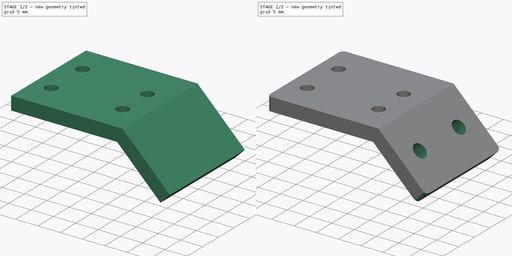
[diagram: build sequence overview — one tinted view per stage of 2, left to right]
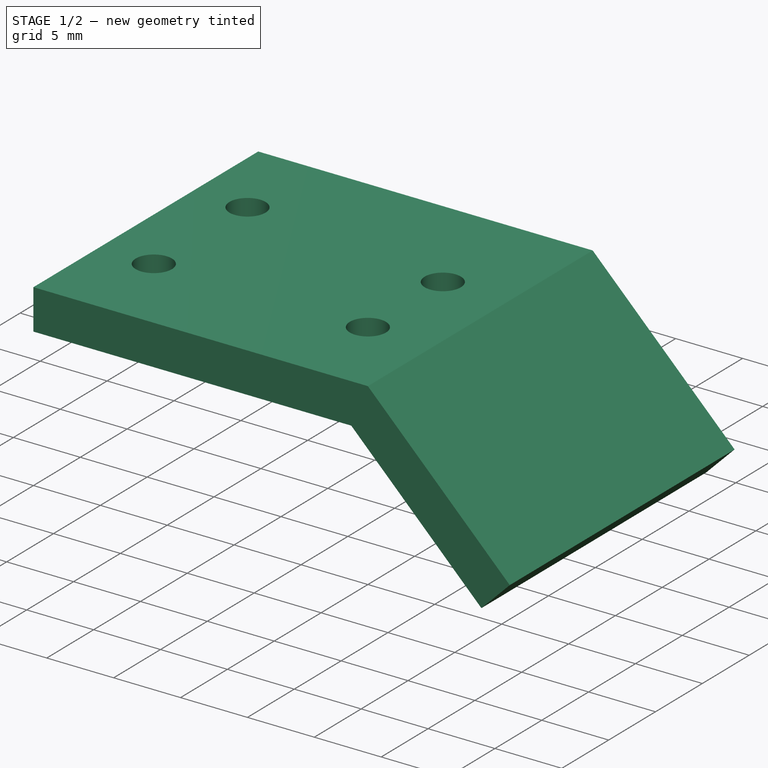
[diagram: stage 1 of 2 — iso view after this stage's code; geometry added in this stage tinted green]
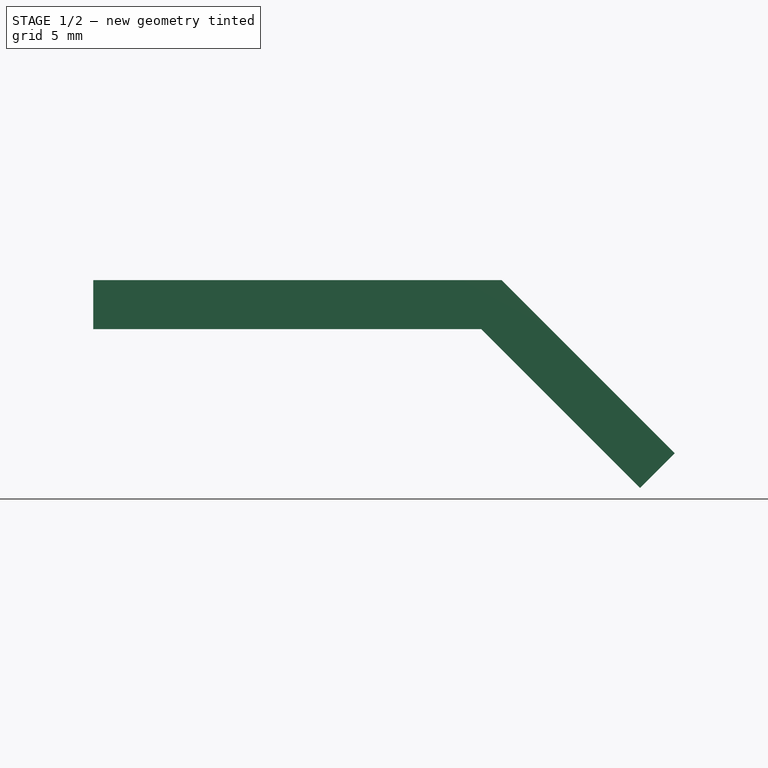
[diagram: stage 1 of 2 — front view after this stage's code; geometry added in this stage tinted green]
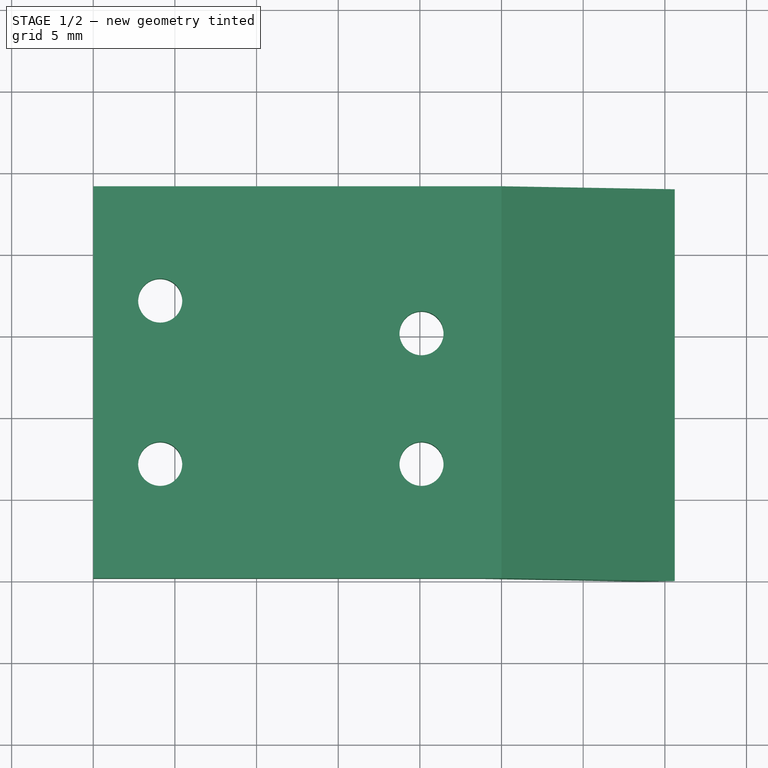
[diagram: stage 1 of 2 — top view after this stage's code; geometry added in this stage tinted green]
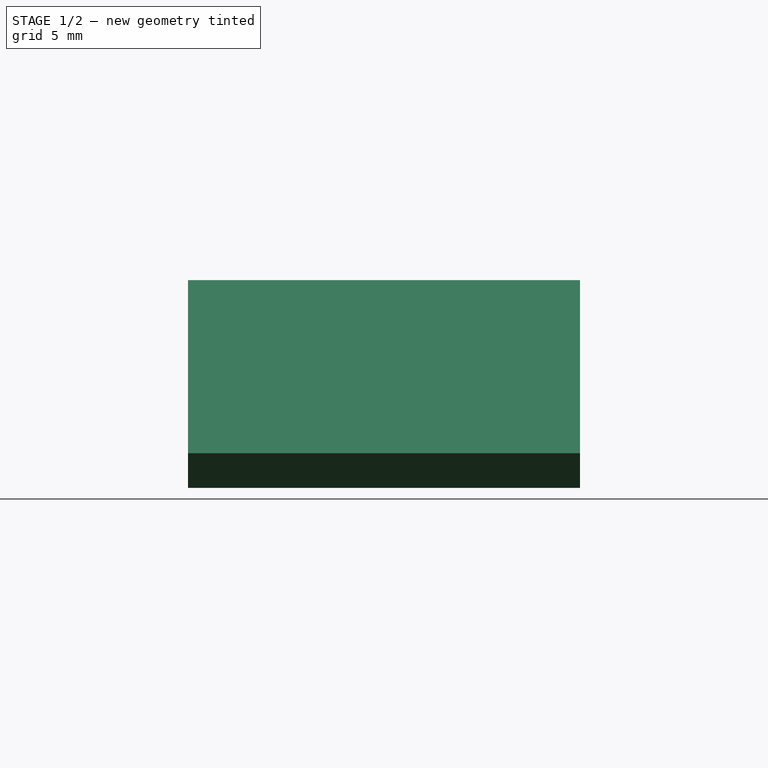
[diagram: stage 1 of 2 — right view after this stage's code; geometry added in this stage tinted green]
FCSTD DOCUMENT  (FreeCAD 0.19R24276 (Git))
Label: Nikhrom_plate_holder
License: All rights reserved
LicenseURL: http://en.wikipedia.org/wiki/All_rights_reserved
objects: Sketcher::SketchObject×3, PartDesign::Pad×2, PartDesign::Pocket×1, PartDesign::Fillet×1, PartDesign::Body×1
note: 12 computed .brp shape members not serialized (recipe doc carries the construction recipe); baked Part::Feature solids carry a one-line shape summary decoded from their .brp

FEATURE [Sketcher::SketchObject] Sketch
  FullyConstrained = true
  MapMode = 5
  Support = -> [XY_Plane]
  sketch-geometry (8):
    g0: LineSegment StartX=0 StartY=0 StartZ=0 EndX=25 EndY=0 EndZ=0
    g1: LineSegment StartX=25 StartY=0 StartZ=0 EndX=25 EndY=24 EndZ=0
    g2: LineSegment StartX=25 StartY=24 StartZ=0 EndX=0 EndY=24 EndZ=0
    g3: LineSegment StartX=0 StartY=24 StartZ=0 EndX=0 EndY=0 EndZ=0
    g4: Circle CenterX=4.1 CenterY=17 CenterZ=0 NormalX=0 NormalY=0 NormalZ=1 AngleXU=0 Radius=1.35
    g5: Circle CenterX=20.1 CenterY=15 CenterZ=0 NormalX=0 NormalY=0 NormalZ=1 AngleXU=0 Radius=1.35
    g6: Circle CenterX=4.1 CenterY=7 CenterZ=0 NormalX=0 NormalY=0 NormalZ=1 AngleXU=0 Radius=1.35
    g7: Circle CenterX=20.1 CenterY=7 CenterZ=0 NormalX=0 NormalY=0 NormalZ=1 AngleXU=0 Radius=1.35
  constraints (23):
    c: Coincident(g0,g1)
    c: Coincident(g1,g2)
    c: Coincident(g2,g3)
    c: Coincident(g3,g0)
    c: Horizontal(g0)
    c: Horizontal(g2)
    c: Vertical(g1)
    c: Vertical(g3)
    c: Coincident(g0,g-1)
    c: DistanceY(g3,g3) = 24
    c: DistanceX(g0,g0) = 25
    c: Diameter(g6) = 2.7
    c: Equal(g6,g4)
    c: Equal(g6,g7)
    c: Equal(g6,g5)
    c: Vertical(g4,g6)
    c: DistanceY(g-1,g6) = 7
    c: DistanceY(g6,g4) = 10
    c: Horizontal(g6,g7)
    c: Vertical(g5,g7)
    c: DistanceY(g7,g5) = 8
    c: DistanceX(g6,g7) = 16
    c: DistanceX(g-1,g6) = 4.1
FEATURE [PartDesign::Pad] Pad
  Direction = (1,1,1)
  Length = 3
  Length2 = 100
  Profile = -> Sketch
  Type = 0
FEATURE [Sketcher::SketchObject] Sketch001
  FullyConstrained = true
  MapMode = 5
  Placement = pos=(0,24,0) rot=(0,0.707107,0.707107;3.14159rad)
  Support = -> [Pad]
  sketch-geometry (10):
    g0: LineSegment StartX=0 StartY=0 StartZ=0 EndX=10.6066 EndY=10.6066 EndZ=0
    g1: LineSegment StartX=10.6066 StartY=10.6066 StartZ=0 EndX=8.48528 EndY=12.7279 EndZ=0
    g2: LineSegment StartX=8.48528 StartY=12.7279 StartZ=0 EndX=-2.12132 EndY=2.12132 EndZ=0
    g3: LineSegment StartX=0 StartY=0 StartZ=0 EndX=-2.12132 EndY=2.12132 EndZ=0
    g4: LineSegment StartX=-25 StartY=3 StartZ=0 EndX=-35.6066 EndY=-7.6066 EndZ=0
    g5: LineSegment StartX=0 StartY=0 StartZ=0 EndX=-25 EndY=0 EndZ=0
    g6: LineSegment StartX=-25 StartY=0 StartZ=0 EndX=-25 EndY=3 EndZ=0
    g7: LineSegment StartX=-35.6066 StartY=-7.6066 StartZ=0 EndX=-33.4853 EndY=-9.72792 EndZ=0
    g8: LineSegment StartX=-33.4853 StartY=-9.72792 StartZ=0 EndX=-22.8787 EndY=0.87868 EndZ=0
    g9: LineSegment StartX=-22.8787 StartY=0.87868 StartZ=0 EndX=-25 EndY=3 EndZ=0
  constraints (28):
    c: Coincident(g0,g-1)
    c: Angle(g-1,g0) = 0.785398
    c: Coincident(g1,g0)
    c: Perpendicular(g0,g1)
    c: Coincident(g2,g1)
    c: Coincident(g3,g0)
    c: Coincident(g3,g2)
    c: Perpendicular(g0,g3)
    c: Parallel(g2,g0)
    c: Distance(g1) = 3
    c: Distance(g0) = 15
    c: Coincident(g5,g0)
    c: Horizontal(g5)
    c: Coincident(g6,g5)
    c: Coincident(g6,g4)
    c: Vertical(g6)
    c: DistanceX(g5,g5) = 25
    c: DistanceY(g6,g6) = 3
    c: Parallel(g4,g2)
    c: Equal(g2,g4)
    c: Coincident(g7,g4)
    c: Coincident(g8,g7)
    c: Coincident(g9,g4)
    c: Perpendicular(g4,g7)
    c: Parallel(g8,g4)
    c: Parallel(g9,g7)
    c: Distance(g7) = 3
    c: Coincident(g8,g9)
FEATURE [PartDesign::Pad] Pad001
  BaseFeature = -> Pad
  Direction = (1,1,1)
  Length = 24
  Length2 = 100
  Profile = -> Sketch001
  Reversed = true
  Type = 0
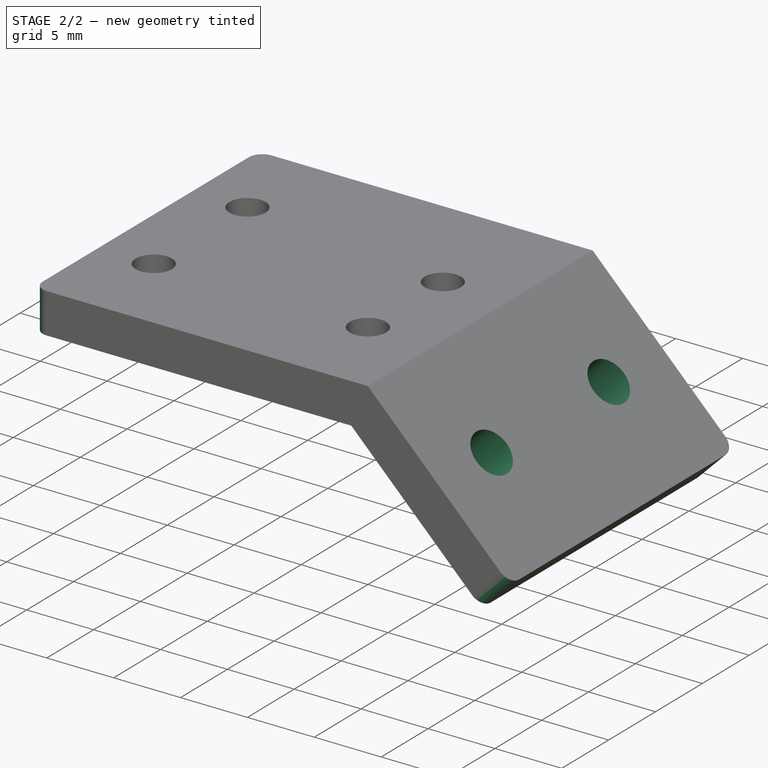
[diagram: stage 2 of 2 — iso view after this stage's code; geometry added in this stage tinted green]
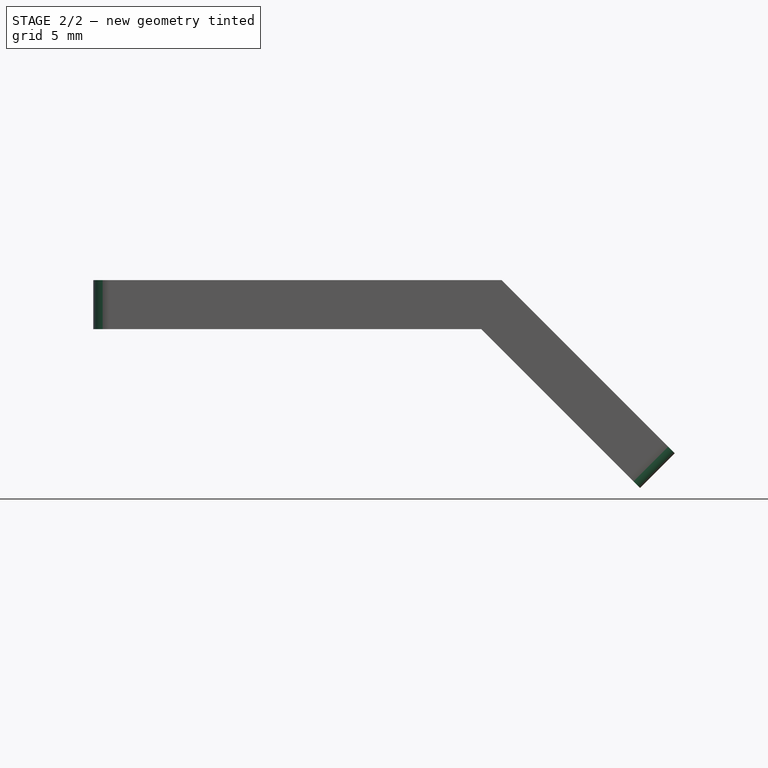
[diagram: stage 2 of 2 — front view after this stage's code; geometry added in this stage tinted green]
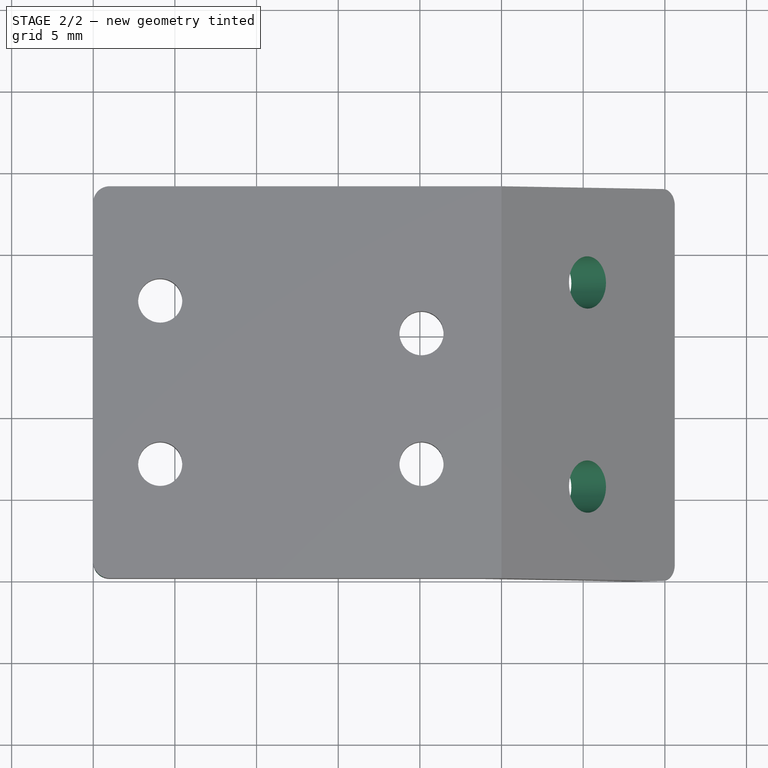
[diagram: stage 2 of 2 — top view after this stage's code; geometry added in this stage tinted green]
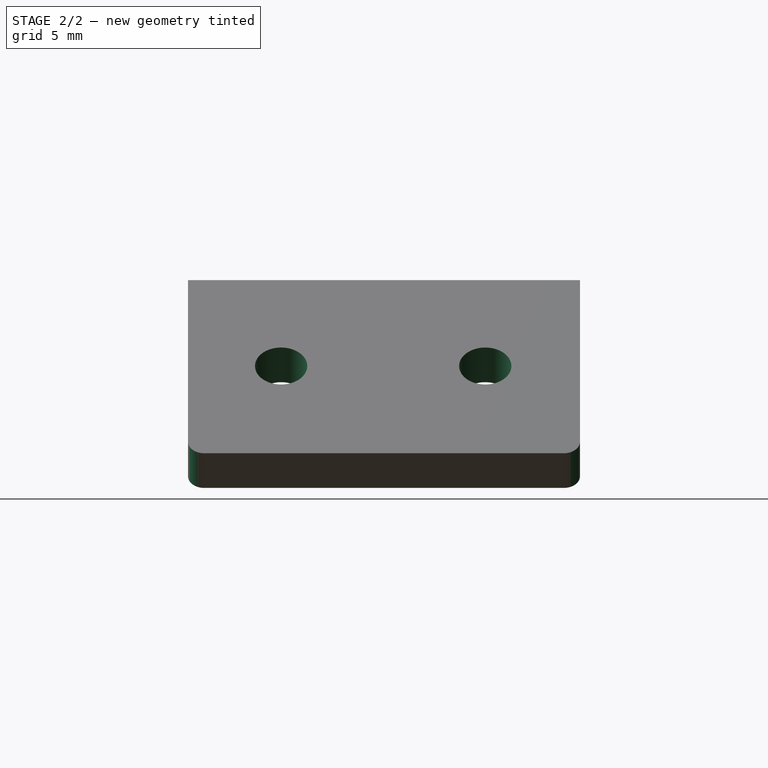
[diagram: stage 2 of 2 — right view after this stage's code; geometry added in this stage tinted green]
FEATURE [Sketcher::SketchObject] Sketch002
  FullyConstrained = true
  MapMode = 5
  Placement = pos=(14,3.1e-15,14) rot=(0.357407,0.357407,0.862856;1.71777rad)
  Support = -> [Pad001]
  sketch-geometry (4):
    g0: Circle CenterX=5.7 CenterY=-23 CenterZ=0 NormalX=0 NormalY=0 NormalZ=1 AngleXU=0 Radius=1.6
    g1: Circle CenterX=18.2 CenterY=-23 CenterZ=0 NormalX=0 NormalY=0 NormalZ=1 AngleXU=0 Radius=1.6
    g2: LineSegment StartX=0 StartY=0 StartZ=0 EndX=0 EndY=-15.5 EndZ=0
    g3: LineSegment StartX=0 StartY=-15.5 StartZ=0 EndX=0 EndY=-30.5 EndZ=0
  constraints (12):
    c: Horizontal(g0,g1)
    c: Equal(g0,g1)
    c: Diameter(g0) = 3.2
    c: Coincident(g2,g-1)
    c: PointOnObject(g2,g-2)
    c: Coincident(g3,g2)
    c: DistanceY(g3,g3) = 15
    c: DistanceY(g2,g2) = 15.5
    c: Parallel(g3,g2)
    c: DistanceY(g0,g2) = 7.5
    c: DistanceX(g0,g1) = 12.5
    c: DistanceX(g3,g0) = 5.7
FEATURE [PartDesign::Pocket] Pocket
  BaseFeature = -> Pad001
  Length = 5
  Length2 = 100
  Profile = -> Sketch002
  Type = 1
FEATURE [PartDesign::Fillet] Fillet
  Base = -> Pocket [Edge42,Edge34,Edge22,Edge5]
  BaseFeature = -> Pocket
  Radius = 1
  SupportTransform = false
FEATURE [PartDesign::Body] Body
  Group = -> [Sketch,Pad,Sketch001,Pad001,Sketch002,Pocket,Fillet]
  Origin = -> Origin
  Tip = -> Fillet
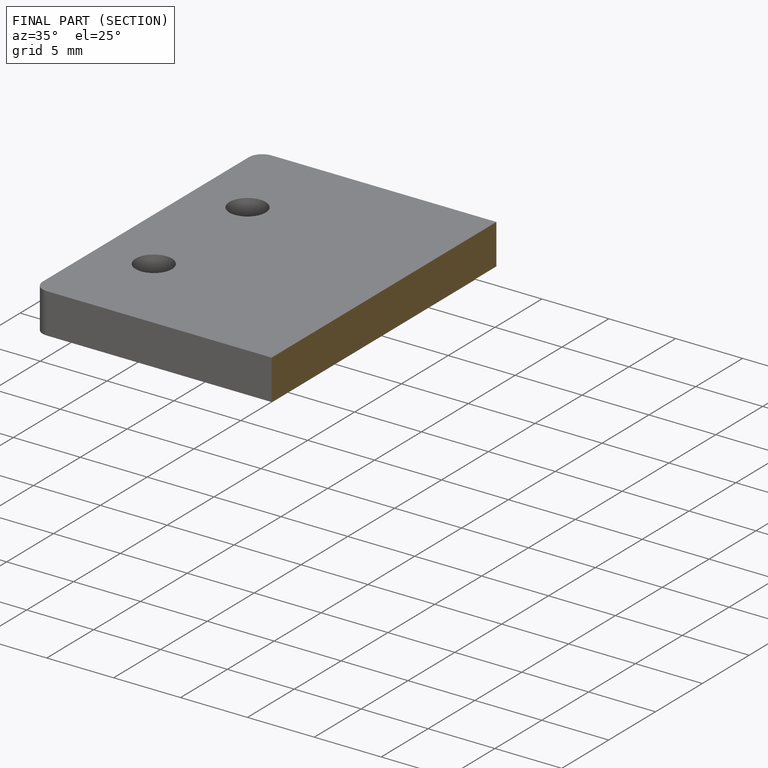
[diagram: finished part — half-section view (interior)]
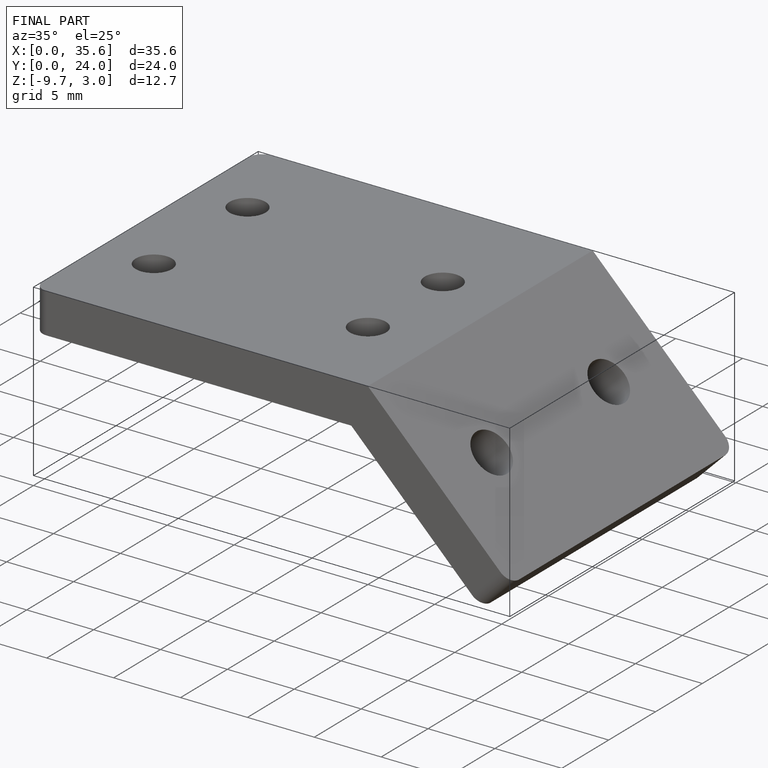
[diagram: finished part — iso view with bounding-box wireframe]
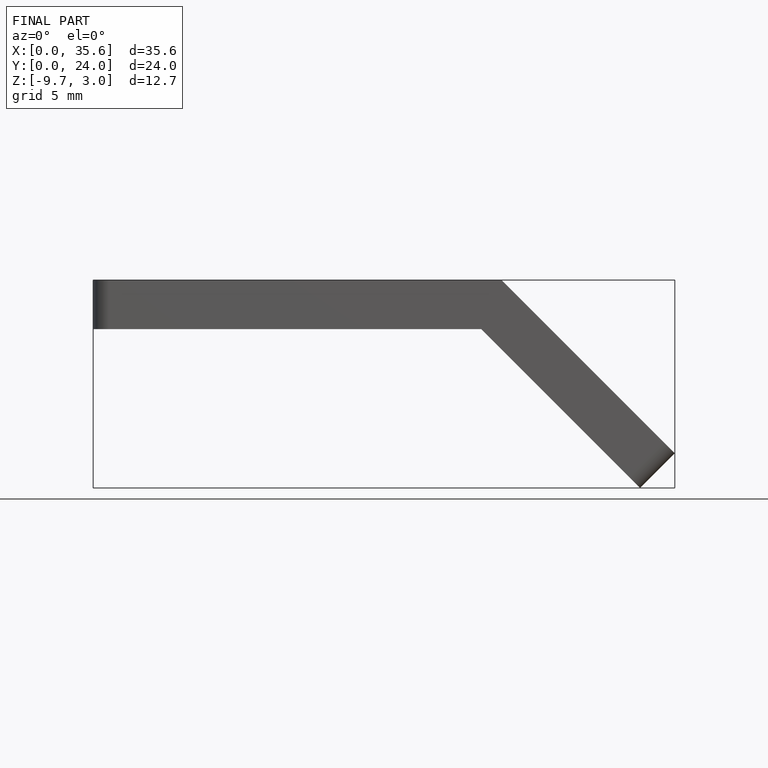
[diagram: finished part — front view with bounding-box wireframe]
